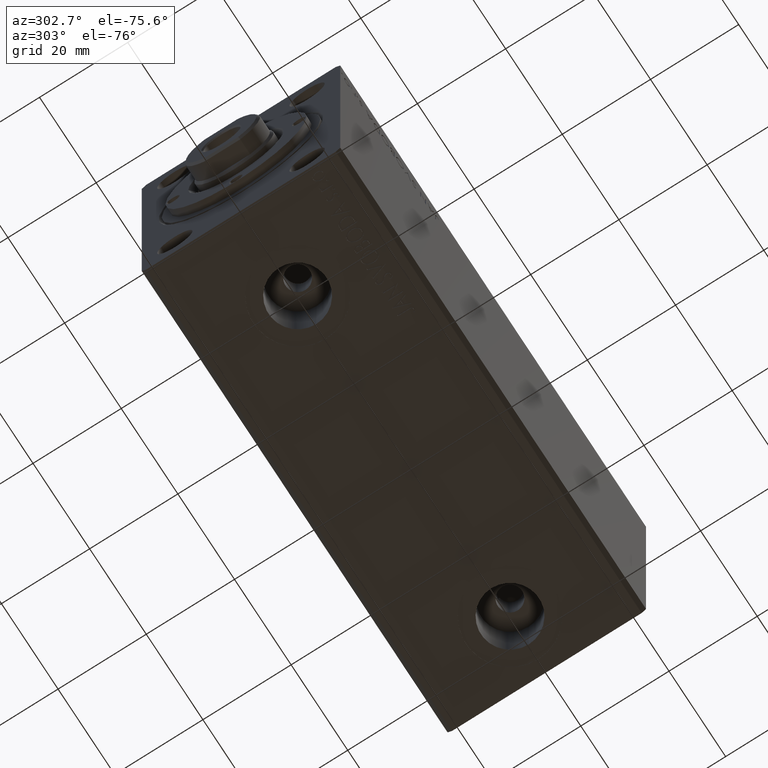
[diagram: clean part render]
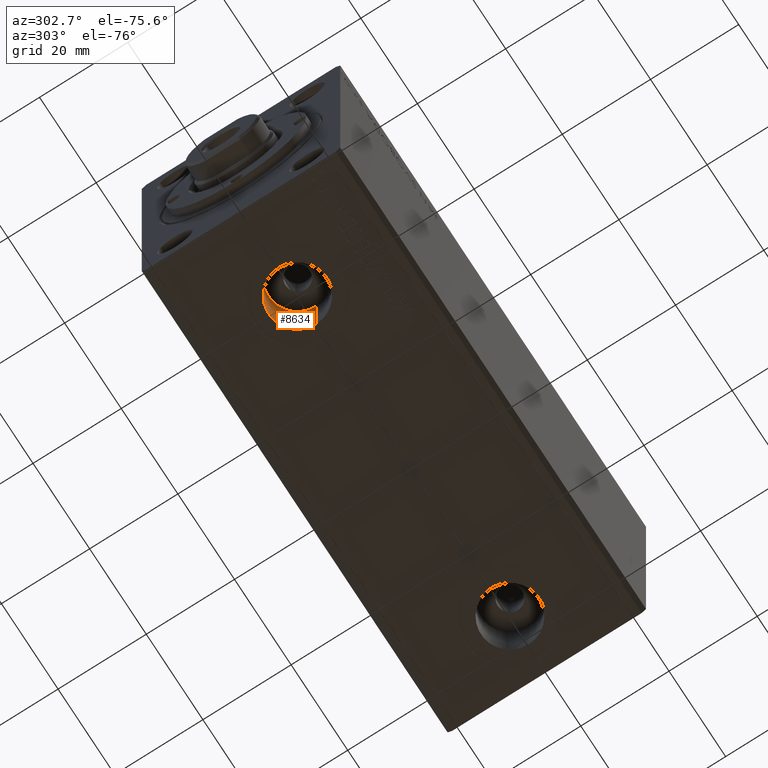
[diagram: same view with one face highlighted and labeled with its STEP entity id]
A machine part, auxiliary view. The second image highlights one B-rep face of the part: STEP entity #8634.
In plain terms, the highlighted cylindrical surface (edge-blend (fillet) strip) has radius 6.58 mm, axis along (-0, -0, -1).
Its self-contained STEP definition (entity closure, byte-faithful):
#439 = VERTEX_POINT ( 'NONE', #43010 ) ;
#1337 = CARTESIAN_POINT ( 'NONE',  ( 13.41999999999999460, 2.578758962896938545E-15, -18.79999999999999716 ) ) ;
#2858 = CIRCLE ( 'NONE', #33485, 6.580000000000002736 ) ;
#5579 = VERTEX_POINT ( 'NONE', #24395 ) ;
#6759 = EDGE_CURVE ( 'NONE', #17520, #5579, #15319, .T. ) ;
#6973 = AXIS2_PLACEMENT_3D ( 'NONE', #28154, #35093, #41758 ) ;
#7505 = ORIENTED_EDGE ( 'NONE', *, *, #21425, .F. ) ;
#7783 = DIRECTION ( 'NONE',  ( -1.000000000000000000, 0.000000000000000000, 0.000000000000000000 ) ) ;
#8634 = ADVANCED_FACE ( 'NONE', ( #38537 ), #39174, .F. ) ;
#8654 = AXIS2_PLACEMENT_3D ( 'NONE', #28490, #22251, #7783 ) ;
#12287 = DIRECTION ( 'NONE',  ( -0.000000000000000000, -0.000000000000000000, -1.000000000000000000 ) ) ;
#14855 = EDGE_CURVE ( 'NONE', #439, #39623, #39239, .T. ) ;
#15319 = LINE ( 'NONE', #29118, #30675 ) ;
#17520 = VERTEX_POINT ( 'NONE', #32482 ) ;
#17651 = CIRCLE ( 'NONE', #6973, 6.580000000000002736 ) ;
#18022 = CARTESIAN_POINT ( 'NONE',  ( 13.41999999999999460, 2.578758962896938545E-15, -32.39999999999999858 ) ) ;
#19167 = DIRECTION ( 'NONE',  ( 0.000000000000000000, 0.000000000000000000, -1.000000000000000000 ) ) ;
#21168 = ORIENTED_EDGE ( 'NONE', *, *, #6759, .F. ) ;
#21425 = EDGE_CURVE ( 'NONE', #439, #17520, #17651, .T. ) ;
#22251 = DIRECTION ( 'NONE',  ( -0.000000000000000000, -0.000000000000000000, -1.000000000000000000 ) ) ;
#24395 = CARTESIAN_POINT ( 'NONE',  ( 26.57999999999999829, 3.384576556735897587E-15, -32.39999999999999858 ) ) ;
#26287 = CARTESIAN_POINT ( 'NONE',  ( 19.99999999999999645, 2.578758962896938545E-15, -32.39999999999999858 ) ) ;
#26773 = ORIENTED_EDGE ( 'NONE', *, *, #14855, .T. ) ;
#28154 = CARTESIAN_POINT ( 'NONE',  ( 19.99999999999999645, 2.578758962896938545E-15, -18.79999999999999716 ) ) ;
#28490 = CARTESIAN_POINT ( 'NONE',  ( 19.99999999999999645, 2.578758962896938545E-15, -18.79999999999999716 ) ) ;
#29118 = CARTESIAN_POINT ( 'NONE',  ( 26.57999999999999829, 3.384576556735897587E-15, -18.79999999999999716 ) ) ;
#29878 = EDGE_LOOP ( 'NONE', ( #21168, #7505, #26773, #31400 ) ) ;
#30675 = VECTOR ( 'NONE', #38941, 1000.000000000000000 ) ;
#31400 = ORIENTED_EDGE ( 'NONE', *, *, #32409, .T. ) ;
#32409 = EDGE_CURVE ( 'NONE', #39623, #5579, #2858, .T. ) ;
#32482 = CARTESIAN_POINT ( 'NONE',  ( 26.57999999999999829, 3.384576556735897587E-15, -18.79999999999999716 ) ) ;
#33212 = DIRECTION ( 'NONE',  ( -1.000000000000000000, 0.000000000000000000, 0.000000000000000000 ) ) ;
#33485 = AXIS2_PLACEMENT_3D ( 'NONE', #26287, #19167, #33212 ) ;
#35093 = DIRECTION ( 'NONE',  ( 0.000000000000000000, 0.000000000000000000, -1.000000000000000000 ) ) ;
#35725 = VECTOR ( 'NONE', #12287, 1000.000000000000000 ) ;
#38537 = FACE_OUTER_BOUND ( 'NONE', #29878, .T. ) ;
#38941 = DIRECTION ( 'NONE',  ( -0.000000000000000000, -0.000000000000000000, -1.000000000000000000 ) ) ;
#39174 = CYLINDRICAL_SURFACE ( 'NONE', #8654, 6.580000000000002736 ) ;
#39239 = LINE ( 'NONE', #1337, #35725 ) ;
#39623 = VERTEX_POINT ( 'NONE', #18022 ) ;
#41758 = DIRECTION ( 'NONE',  ( -1.000000000000000000, 0.000000000000000000, 0.000000000000000000 ) ) ;
#43010 = CARTESIAN_POINT ( 'NONE',  ( 13.41999999999999460, 2.578758962896938545E-15, -18.79999999999999716 ) ) ;